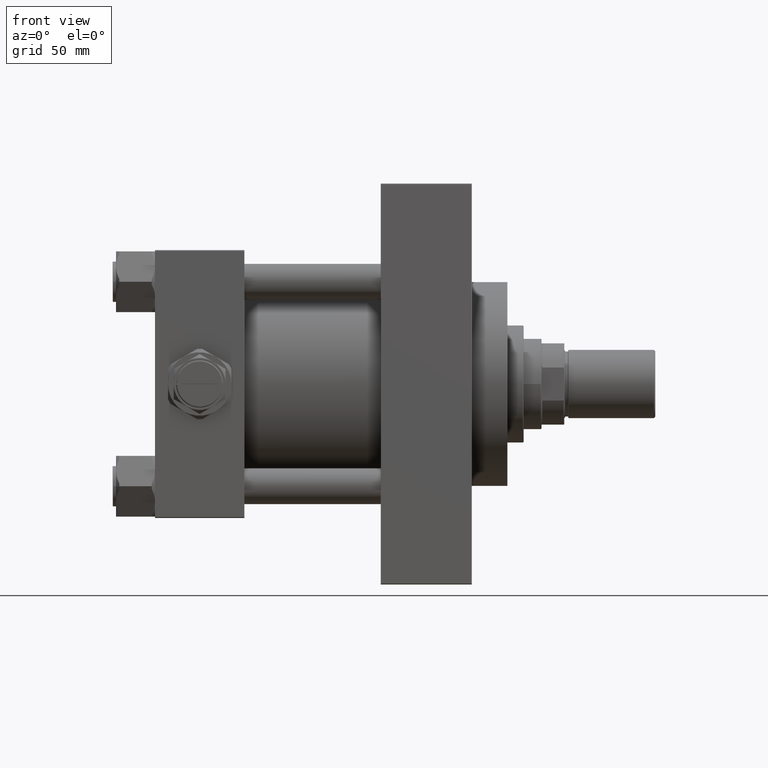
[diagram: clean part render]
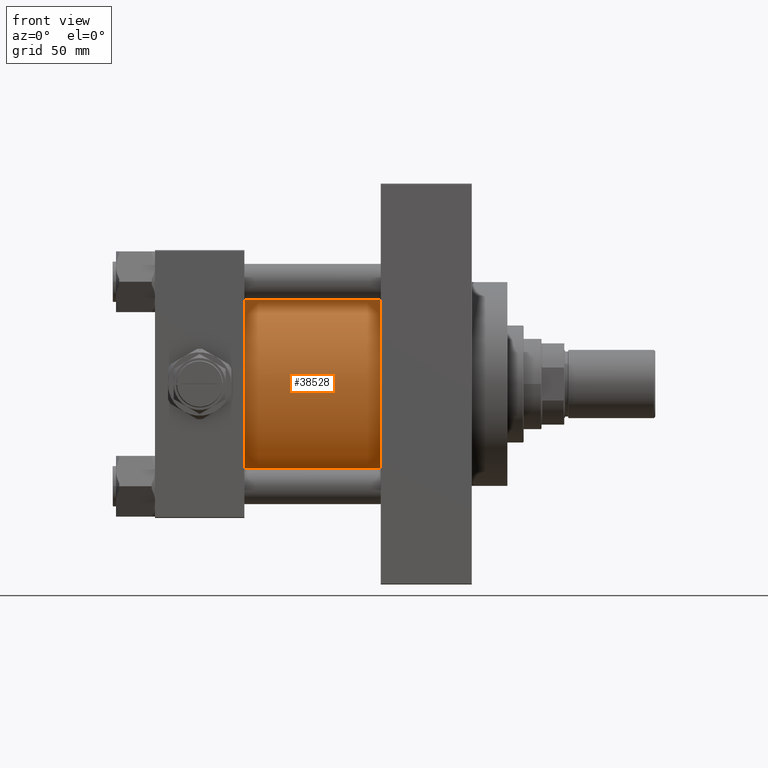
[diagram: same view with one face highlighted and labeled with its STEP entity id]
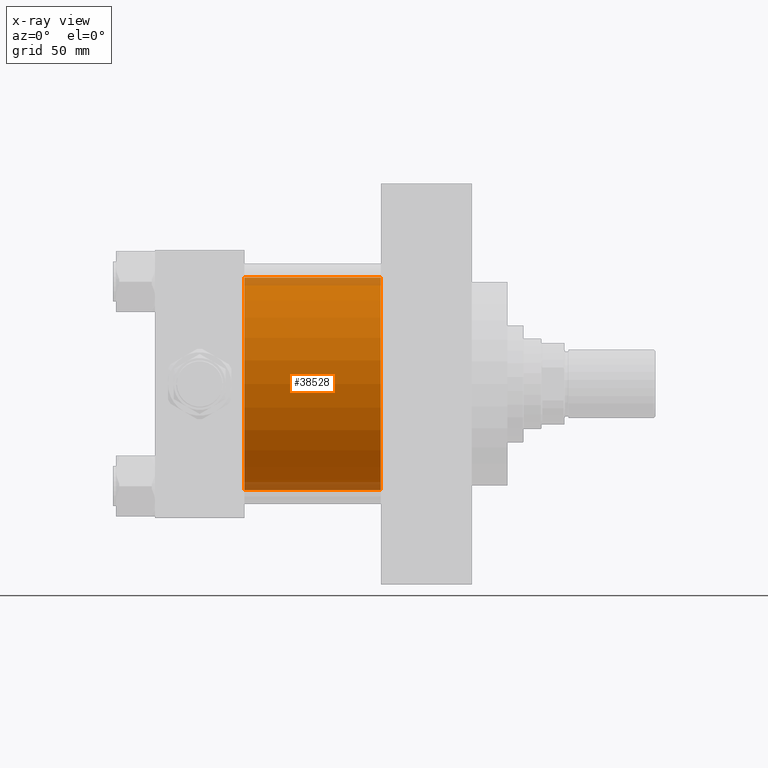
[diagram: x-ray of the same camera — body ghosted, the highlighted face saturated]
A machine part, front view. The second image highlights one B-rep face of the part: STEP entity #38528.
The next image is the same camera in x-ray: the body ghosted, the highlighted face saturated — about 8% of this face is hidden behind the body in this view.
In plain terms, the highlighted cylindrical surface (partial cylindrical patch) has radius 65.5 mm, axis along (-1, -0, -0).
Its self-contained STEP definition (entity closure, byte-faithful):
#435 = DIRECTION ( 'NONE',  ( -1.000000000000000000, -0.000000000000000000, -0.000000000000000000 ) ) ;
#853 = CIRCLE ( 'NONE', #33133, 65.50000000000001421 ) ;
#1419 = ORIENTED_EDGE ( 'NONE', *, *, #37646, .F. ) ;
#1679 = CARTESIAN_POINT ( 'NONE',  ( 54.99999999999999289, -2.602085213965210642E-15, 0.000000000000000000 ) ) ;
#2034 = VERTEX_POINT ( 'NONE', #19048 ) ;
#2172 = DIRECTION ( 'NONE',  ( 1.000000000000000000, -0.000000000000000000, -0.000000000000000000 ) ) ;
#2359 = AXIS2_PLACEMENT_3D ( 'NONE', #35042, #435, #30003 ) ;
#4216 = FACE_OUTER_BOUND ( 'NONE', #15930, .T. ) ;
#4980 = DIRECTION ( 'NONE',  ( 0.000000000000000000, 0.000000000000000000, 1.000000000000000000 ) ) ;
#10318 = EDGE_CURVE ( 'NONE', #2034, #19117, #853, .T. ) ;
#11273 = DIRECTION ( 'NONE',  ( 1.000000000000000000, 0.000000000000000000, 0.000000000000000000 ) ) ;
#11779 = DIRECTION ( 'NONE',  ( 0.000000000000000000, 0.000000000000000000, -1.000000000000000000 ) ) ;
#12771 = VECTOR ( 'NONE', #29550, 1000.000000000000000 ) ;
#14486 = ORIENTED_EDGE ( 'NONE', *, *, #10318, .T. ) ;
#15930 = EDGE_LOOP ( 'NONE', ( #37951, #1419, #29758, #14486 ) ) ;
#19048 = CARTESIAN_POINT ( 'NONE',  ( 54.99999999999999289, -2.602085213965210642E-15, 65.50000000000001421 ) ) ;
#19117 = VERTEX_POINT ( 'NONE', #20950 ) ;
#19352 = CARTESIAN_POINT ( 'NONE',  ( 139.0000000000000000, -2.602085213965210642E-15, 0.000000000000000000 ) ) ;
#19612 = CYLINDRICAL_SURFACE ( 'NONE', #2359, 65.50000000000001421 ) ;
#19937 = EDGE_CURVE ( 'NONE', #39725, #2034, #48000, .T. ) ;
#20950 = CARTESIAN_POINT ( 'NONE',  ( 54.99999999999999289, 5.419351320449953395E-15, -65.50000000000001421 ) ) ;
#22453 = CIRCLE ( 'NONE', #28933, 65.50000000000001421 ) ;
#25006 = LINE ( 'NONE', #33585, #12771 ) ;
#25011 = CARTESIAN_POINT ( 'NONE',  ( 139.0000000000000000, -2.602085213965210642E-15, 65.50000000000001421 ) ) ;
#28933 = AXIS2_PLACEMENT_3D ( 'NONE', #19352, #11273, #11779 ) ;
#29550 = DIRECTION ( 'NONE',  ( -1.000000000000000000, -0.000000000000000000, -0.000000000000000000 ) ) ;
#29758 = ORIENTED_EDGE ( 'NONE', *, *, #19937, .T. ) ;
#30003 = DIRECTION ( 'NONE',  ( 0.000000000000000000, 0.000000000000000000, 1.000000000000000000 ) ) ;
#33113 = CARTESIAN_POINT ( 'NONE',  ( 139.0000000000000000, 5.419351320449953395E-15, -65.50000000000001421 ) ) ;
#33133 = AXIS2_PLACEMENT_3D ( 'NONE', #1679, #2172, #4980 ) ;
#33585 = CARTESIAN_POINT ( 'NONE',  ( 139.0000000000000000, 5.419351320449953395E-15, -65.50000000000001421 ) ) ;
#35042 = CARTESIAN_POINT ( 'NONE',  ( 139.0000000000000000, -2.602085213965210642E-15, 0.000000000000000000 ) ) ;
#35053 = VERTEX_POINT ( 'NONE', #33113 ) ;
#36479 = EDGE_CURVE ( 'NONE', #35053, #19117, #25006, .T. ) ;
#37646 = EDGE_CURVE ( 'NONE', #39725, #35053, #22453, .T. ) ;
#37951 = ORIENTED_EDGE ( 'NONE', *, *, #36479, .F. ) ;
#38528 = ADVANCED_FACE ( 'NONE', ( #4216 ), #19612, .T. ) ;
#39725 = VERTEX_POINT ( 'NONE', #45116 ) ;
#40430 = DIRECTION ( 'NONE',  ( -1.000000000000000000, -0.000000000000000000, -0.000000000000000000 ) ) ;
#44738 = VECTOR ( 'NONE', #40430, 1000.000000000000000 ) ;
#45116 = CARTESIAN_POINT ( 'NONE',  ( 139.0000000000000000, -2.602085213965210642E-15, 65.50000000000001421 ) ) ;
#48000 = LINE ( 'NONE', #25011, #44738 ) ;